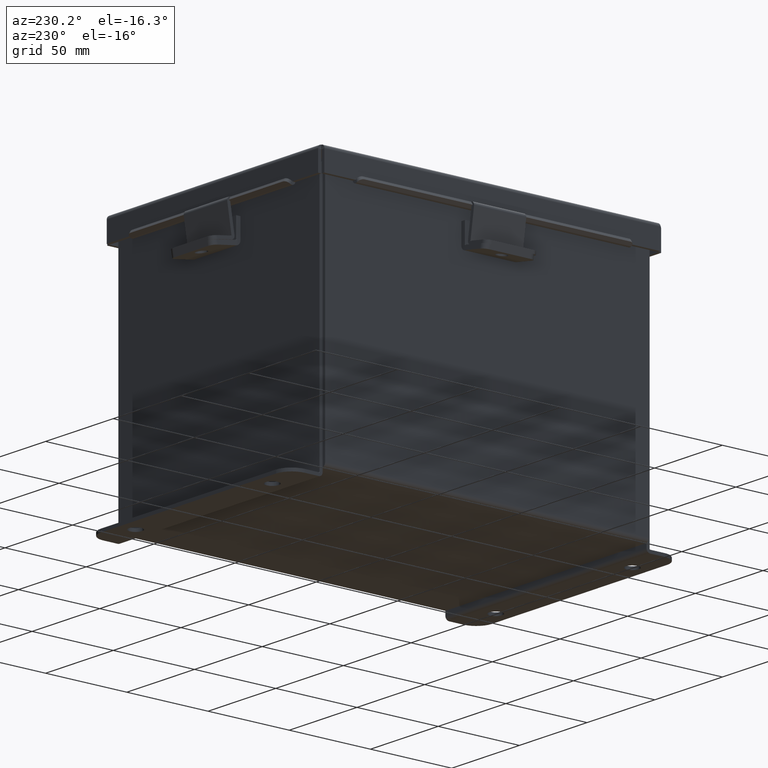
[diagram: clean part render]
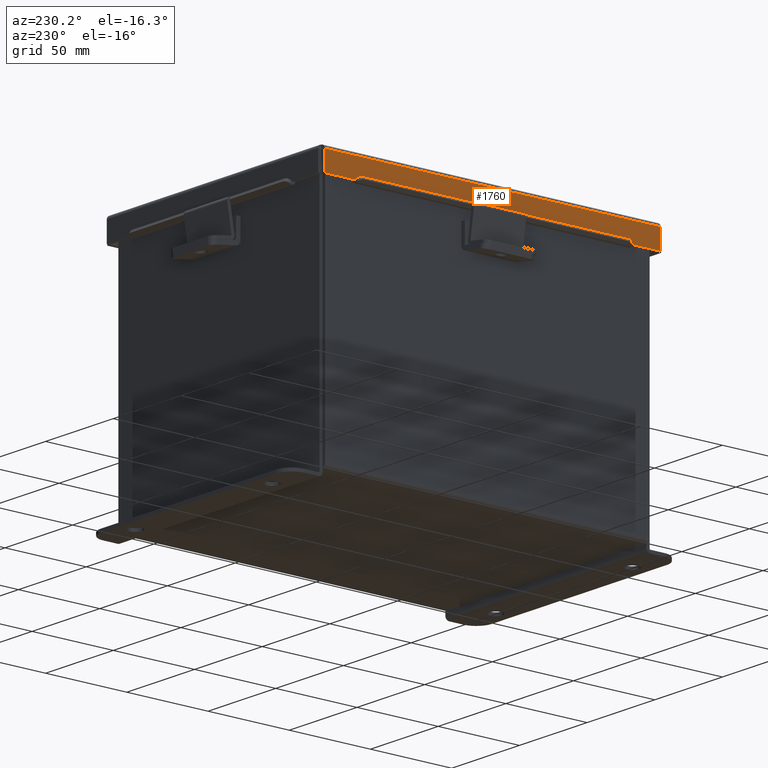
[diagram: same view with one face highlighted and labeled with its STEP entity id]
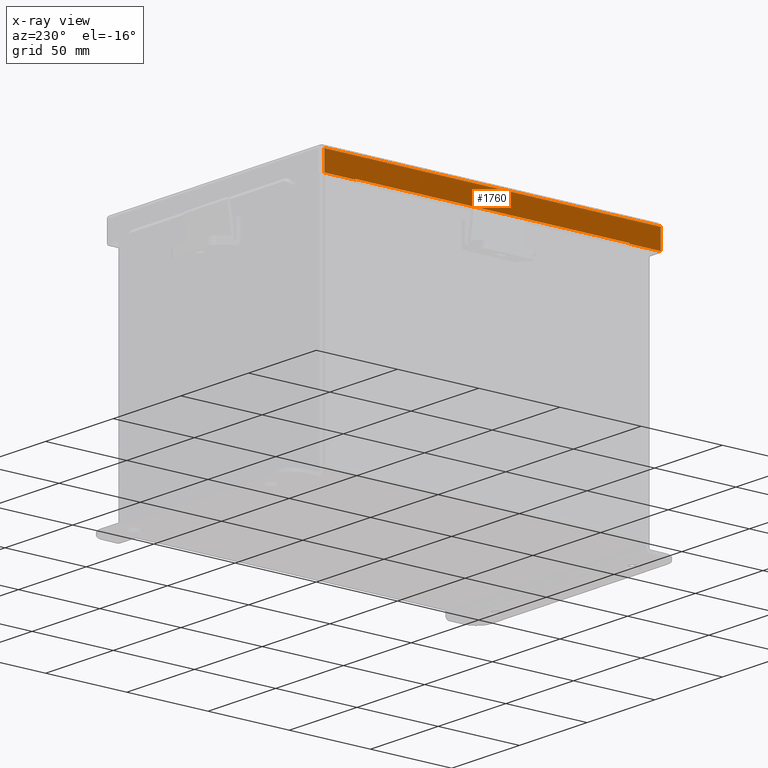
[diagram: x-ray of the same camera — body ghosted, the highlighted face saturated]
A machine part, auxiliary view. The second image highlights one B-rep face of the part: STEP entity #1760.
The next image is the same camera in x-ray: the body ghosted, the highlighted face saturated — about 0% of this face is hidden behind the body in this view.
In plain terms, the highlighted planar face has unit normal (1, -0, 0).
Its self-contained STEP definition (entity closure, byte-faithful):
#109 = PLANE ( 'NONE',  #1040 ) ;
#287 = LINE ( 'NONE', #3806, #1216 ) ;
#825 = CARTESIAN_POINT ( 'NONE',  ( 3.156250000000002700, 3.324478932188137400, 0.4717115427318795400 ) ) ;
#868 = DIRECTION ( 'NONE',  ( 3.363654414526078100E-015, 0.0000000000000000000, 1.000000000000000000 ) ) ;
#1040 = AXIS2_PLACEMENT_3D ( 'NONE', #1583, #5306, #868 ) ;
#1123 = VERTEX_POINT ( 'NONE', #3803 ) ;
#1216 = VECTOR ( 'NONE', #6661, 39.37007874015748100 ) ;
#1245 = DIRECTION ( 'NONE',  ( -0.0000000000000000000, -1.000000000000000000, -0.0000000000000000000 ) ) ;
#1345 = EDGE_CURVE ( 'NONE', #8678, #1123, #6602, .T. ) ;
#1486 = CARTESIAN_POINT ( 'NONE',  ( 3.156250000000000900, -4.074478932188133000, 0.01299999999999985900 ) ) ;
#1535 = VERTEX_POINT ( 'NONE', #1486 ) ;
#1547 = VERTEX_POINT ( 'NONE', #2248 ) ;
#1583 = CARTESIAN_POINT ( 'NONE',  ( 3.156250000000000900, -9.819863825646696400E-018, -1.087734790185952100E-014 ) ) ;
#1728 = EDGE_CURVE ( 'NONE', #7665, #5495, #4045, .T. ) ;
#1760 = ADVANCED_FACE ( 'NONE', ( #6196 ), #109, .F. ) ;
#2164 = EDGE_CURVE ( 'NONE', #8841, #1535, #4761, .T. ) ;
#2221 = EDGE_CURVE ( 'NONE', #1535, #3185, #4052, .T. ) ;
#2243 = ORIENTED_EDGE ( 'NONE', *, *, #2164, .F. ) ;
#2244 = CARTESIAN_POINT ( 'NONE',  ( 3.156250000000002700, -9.819863825646696400E-018, 0.4872999999999997300 ) ) ;
#2248 = CARTESIAN_POINT ( 'NONE',  ( 3.156250000000002700, 4.074478932188137400, 0.4872999999999997300 ) ) ;
#2306 = DIRECTION ( 'NONE',  ( 3.363654414526078100E-015, -0.0000000000000000000, 1.000000000000000000 ) ) ;
#2423 = EDGE_CURVE ( 'NONE', #1547, #5495, #8879, .T. ) ;
#2720 = ORIENTED_EDGE ( 'NONE', *, *, #3239, .T. ) ;
#2755 = EDGE_CURVE ( 'NONE', #8678, #3185, #3357, .T. ) ;
#2809 = VECTOR ( 'NONE', #1245, 39.37007874015748100 ) ;
#2848 = DIRECTION ( 'NONE',  ( 0.0000000000000000000, 1.000000000000000000, 0.0000000000000000000 ) ) ;
#2897 = CARTESIAN_POINT ( 'NONE',  ( 3.156250000000002700, -4.074478932188133800, 0.4872999999999997300 ) ) ;
#2944 = LINE ( 'NONE', #3555, #6566 ) ;
#2947 = CARTESIAN_POINT ( 'NONE',  ( 3.156250000000002700, 3.324478932188137400, 0.4872999999999997300 ) ) ;
#3185 = VERTEX_POINT ( 'NONE', #2897 ) ;
#3239 = EDGE_CURVE ( 'NONE', #8841, #1547, #287, .T. ) ;
#3357 = LINE ( 'NONE', #2244, #9213 ) ;
#3555 = CARTESIAN_POINT ( 'NONE',  ( 3.156250000000002700, -3.324478932188134300, 0.4717115427318795400 ) ) ;
#3584 = CARTESIAN_POINT ( 'NONE',  ( 3.156250000000002700, 3.324478932188137400, 0.4717115427318795400 ) ) ;
#3753 = ORIENTED_EDGE ( 'NONE', *, *, #2221, .F. ) ;
#3803 = CARTESIAN_POINT ( 'NONE',  ( 3.156250000000002700, -3.324478932188134300, 0.4717115427318795400 ) ) ;
#3806 = CARTESIAN_POINT ( 'NONE',  ( 3.156250000000000900, 4.074478932188137400, -1.087734790185952100E-014 ) ) ;
#3815 = VECTOR ( 'NONE', #5270, 39.37007874015748100 ) ;
#4045 = LINE ( 'NONE', #825, #3815 ) ;
#4052 = LINE ( 'NONE', #8168, #7127 ) ;
#4059 = CARTESIAN_POINT ( 'NONE',  ( 3.156250000000002700, -9.819863825646696400E-018, 0.4872999999999997300 ) ) ;
#4463 = CARTESIAN_POINT ( 'NONE',  ( 3.156250000000000900, -4.156250000000000000, 0.01299999999999986400 ) ) ;
#4518 = VECTOR ( 'NONE', #8452, 39.37007874015748100 ) ;
#4761 = LINE ( 'NONE', #4463, #2809 ) ;
#5270 = DIRECTION ( 'NONE',  ( 0.0000000000000000000, 0.0000000000000000000, 1.000000000000000000 ) ) ;
#5306 = DIRECTION ( 'NONE',  ( -1.000000000000000000, 0.0000000000000000000, 3.363654414526078100E-015 ) ) ;
#5495 = VERTEX_POINT ( 'NONE', #2947 ) ;
#5592 = ORIENTED_EDGE ( 'NONE', *, *, #1345, .F. ) ;
#5600 = DIRECTION ( 'NONE',  ( -7.009925220120931900E-014, 0.0000000000000000000, -1.000000000000000000 ) ) ;
#5713 = ORIENTED_EDGE ( 'NONE', *, *, #1728, .F. ) ;
#6196 = FACE_OUTER_BOUND ( 'NONE', #7376, .T. ) ;
#6566 = VECTOR ( 'NONE', #2848, 39.37007874015748100 ) ;
#6602 = LINE ( 'NONE', #9273, #9099 ) ;
#6661 = DIRECTION ( 'NONE',  ( 3.363654414526078100E-015, 0.0000000000000000000, 1.000000000000000000 ) ) ;
#6967 = ORIENTED_EDGE ( 'NONE', *, *, #7658, .F. ) ;
#7093 = CARTESIAN_POINT ( 'NONE',  ( 3.156250000000000900, 4.074478932188137400, 0.01299999999999986400 ) ) ;
#7127 = VECTOR ( 'NONE', #2306, 39.37007874015748100 ) ;
#7376 = EDGE_LOOP ( 'NONE', ( #5592, #9101, #3753, #2243, #2720, #9324, #5713, #6967 ) ) ;
#7658 = EDGE_CURVE ( 'NONE', #1123, #7665, #2944, .T. ) ;
#7665 = VERTEX_POINT ( 'NONE', #3584 ) ;
#8168 = CARTESIAN_POINT ( 'NONE',  ( 3.156250000000000900, -4.074478932188133800, -2.512649847650986200E-016 ) ) ;
#8452 = DIRECTION ( 'NONE',  ( 0.0000000000000000000, -1.000000000000000000, 0.0000000000000000000 ) ) ;
#8678 = VERTEX_POINT ( 'NONE', #9149 ) ;
#8841 = VERTEX_POINT ( 'NONE', #7093 ) ;
#8862 = DIRECTION ( 'NONE',  ( 0.0000000000000000000, -1.000000000000000000, 0.0000000000000000000 ) ) ;
#8879 = LINE ( 'NONE', #4059, #4518 ) ;
#9099 = VECTOR ( 'NONE', #5600, 39.37007874015748100 ) ;
#9101 = ORIENTED_EDGE ( 'NONE', *, *, #2755, .T. ) ;
#9149 = CARTESIAN_POINT ( 'NONE',  ( 3.156250000000002700, -3.324478932188134300, 0.4872999999999997300 ) ) ;
#9213 = VECTOR ( 'NONE', #8862, 39.37007874015748100 ) ;
#9273 = CARTESIAN_POINT ( 'NONE',  ( 3.156250000000004000, -3.324478932188134300, 0.4872999999999993400 ) ) ;
#9324 = ORIENTED_EDGE ( 'NONE', *, *, #2423, .T. ) ;